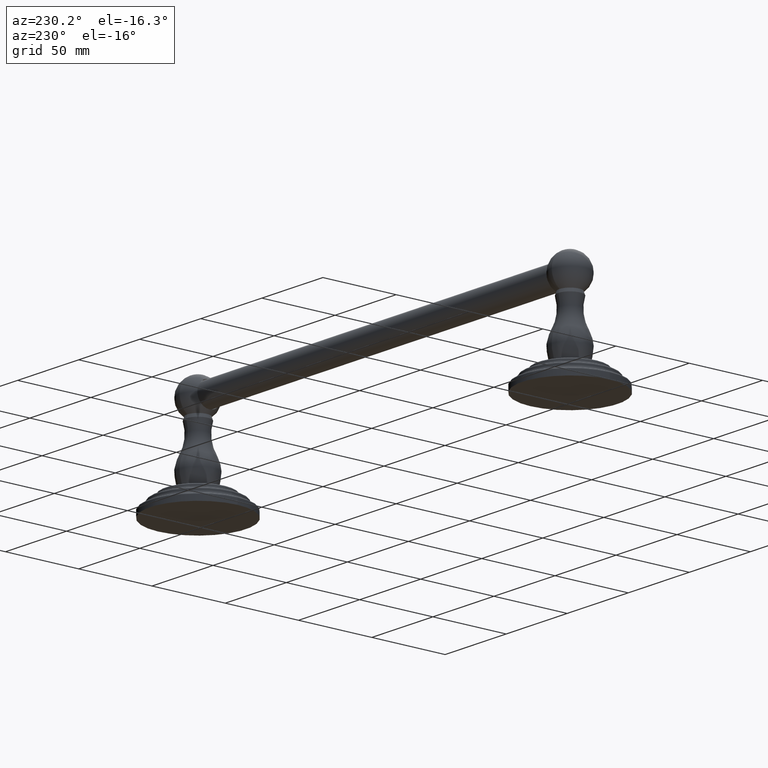
[diagram: clean part render]
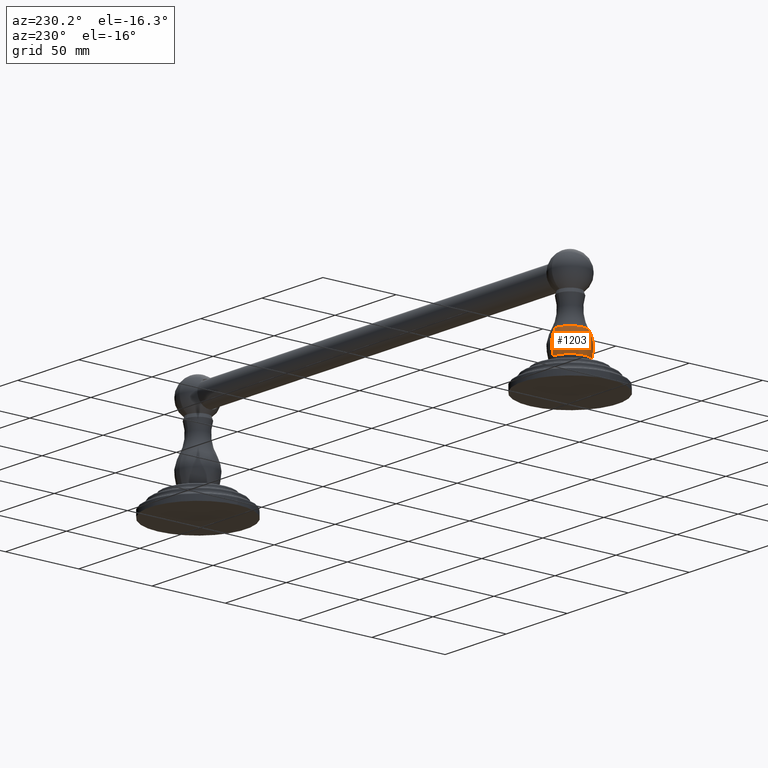
[diagram: same view with one face highlighted and labeled with its STEP entity id]
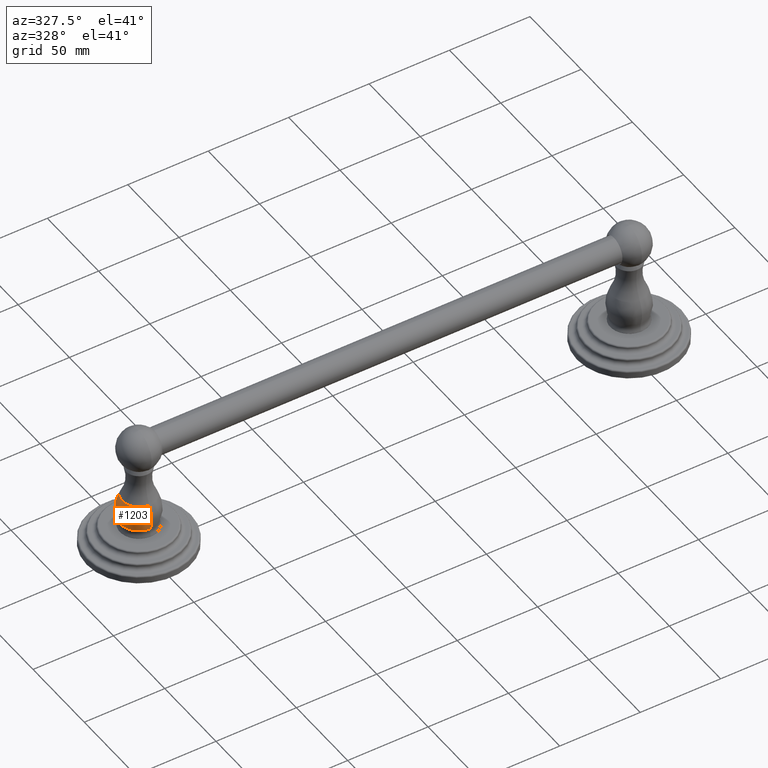
[diagram: same view with one face highlighted and labeled with its STEP entity id]
A machine part, auxiliary view. The second image highlights one B-rep face of the part: STEP entity #1203.
A second angle (auxiliary view) of the same face is appended — the face is thin or edge-on in the first view.
In plain terms, the highlighted face is a freeform B-spline surface patch.
Its self-contained STEP definition (entity closure, byte-faithful):
#214=CARTESIAN_POINT('',(-6.E0,0.E0,7.122557875058E-1));
#215=DIRECTION('',(0.E0,0.E0,-1.E0));
#216=DIRECTION('',(0.E0,-1.E0,0.E0));
#217=AXIS2_PLACEMENT_3D('',#214,#215,#216);
#219=CARTESIAN_POINT('',(-6.E0,-2.317404452469E-1,9.681354143990E-1));
#220=DIRECTION('',(1.E0,0.E0,0.E0));
#221=DIRECTION('',(0.E0,9.360087340445E-1,-3.519767745071E-1));
#222=AXIS2_PLACEMENT_3D('',#219,#220,#221);
#229=CARTESIAN_POINT('',(-6.E0,2.317404452469E-1,9.681354143990E-1));
#230=DIRECTION('',(-1.E0,0.E0,0.E0));
#231=DIRECTION('',(0.E0,-9.360087340445E-1,-3.519767745071E-1));
#232=AXIS2_PLACEMENT_3D('',#229,#230,#231);
#254=CARTESIAN_POINT('',(-6.E0,0.E0,1.325407199184E0));
#255=DIRECTION('',(0.E0,0.E0,-1.E0));
#256=DIRECTION('',(0.E0,-1.E0,0.E0));
#257=AXIS2_PLACEMENT_3D('',#254,#255,#256);
#774=CARTESIAN_POINT('',(-6.E0,-4.013906146024E-1,1.325407199184E0));
#776=VERTEX_POINT('',#774);
#783=CARTESIAN_POINT('',(-6.E0,4.487179911698E-1,7.122557875058E-1));
#785=VERTEX_POINT('',#783);
#786=CARTESIAN_POINT('',(-6.E0,4.013906146024E-1,1.325407199184E0));
#787=VERTEX_POINT('',#786);
#802=CARTESIAN_POINT('',(-6.E0,-4.487179911698E-1,7.122557875058E-1));
#803=VERTEX_POINT('',#802);
#1177=CARTESIAN_POINT('',(-6.E0,4.487179911698E-1,7.122557875058E-1));
#1178=CARTESIAN_POINT('',(-6.E0,5.256862077303E-1,9.169366873902E-1));
#1179=CARTESIAN_POINT('',(-6.E0,5.088574435806E-1,1.134962304773E0));
#1180=CARTESIAN_POINT('',(-6.E0,4.013906146024E-1,1.325407199184E0));
#1181=CARTESIAN_POINT('',(-6.897435982340E0,4.487179911698E-1,
7.122557875058E-1));
#1182=CARTESIAN_POINT('',(-7.051372415461E0,5.256862077303E-1,
9.169366873902E-1));
#1183=CARTESIAN_POINT('',(-7.017714887161E0,5.088574435806E-1,
1.134962304773E0));
#1184=CARTESIAN_POINT('',(-6.802781229205E0,4.013906146024E-1,
1.325407199184E0));
#1185=CARTESIAN_POINT('',(-6.897435982340E0,-4.487179911698E-1,
7.122557875058E-1));
#1186=CARTESIAN_POINT('',(-7.051372415461E0,-5.256862077303E-1,
9.169366873902E-1));
#1187=CARTESIAN_POINT('',(-7.017714887161E0,-5.088574435806E-1,
1.134962304773E0));
#1188=CARTESIAN_POINT('',(-6.802781229205E0,-4.013906146024E-1,
1.325407199184E0));
#1189=CARTESIAN_POINT('',(-6.E0,-4.487179911698E-1,7.122557875058E-1));
#1190=CARTESIAN_POINT('',(-6.E0,-5.256862077303E-1,9.169366873902E-1));
#1191=CARTESIAN_POINT('',(-6.E0,-5.088574435806E-1,1.134962304773E0));
#1192=CARTESIAN_POINT('',(-6.E0,-4.013906146024E-1,1.325407199184E0));
#1193=(BOUNDED_SURFACE()B_SPLINE_SURFACE(3,3,((#1177,#1178,#1179,#1180),(#1181,
#1182,#1183,#1184),(#1185,#1186,#1187,#1188),(#1189,#1190,#1191,#1192)),
.UNSPECIFIED.,.F.,.F.,.F.)B_SPLINE_SURFACE_WITH_KNOTS((4,4),(4,4),(0.E0,1.E0),(
0.E0,1.E0),.UNSPECIFIED.)GEOMETRIC_REPRESENTATION_ITEM()RATIONAL_B_SPLINE_SURFACE(((2.098475869855E0,1.967174710048E0,1.967174710048E0,2.098475869855E0),(
6.994919566182E-1,6.557249033495E-1,6.557249033495E-1,6.994919566182E-1),(
6.994919566182E-1,6.557249033495E-1,6.557249033495E-1,6.994919566182E-1),(
2.098475869855E0,1.967174710048E0,1.967174710048E0,2.098475869855E0)))REPRESENTATION_ITEM('')SURFACE());
#1195=ORIENTED_EDGE('',*,*,#1194,.F.);
#1196=ORIENTED_EDGE('',*,*,#1167,.T.);
#1198=ORIENTED_EDGE('',*,*,#1197,.T.);
#1200=ORIENTED_EDGE('',*,*,#1199,.F.);
#1201=EDGE_LOOP('',(#1195,#1196,#1198,#1200));
#1202=FACE_OUTER_BOUND('',#1201,.F.);
#1203=ADVANCED_FACE('',(#1202),#1193,.T.);
#218=CIRCLE('',#217,4.487179911698E-1);
#223=CIRCLE('',#222,7.269787253762E-1);
#233=CIRCLE('',#232,7.269787253762E-1);
#258=CIRCLE('',#257,4.013906146024E-1);
#1167=EDGE_CURVE('',#803,#785,#218,.T.);
#1194=EDGE_CURVE('',#803,#776,#233,.T.);
#1197=EDGE_CURVE('',#785,#787,#223,.T.);
#1199=EDGE_CURVE('',#776,#787,#258,.T.);